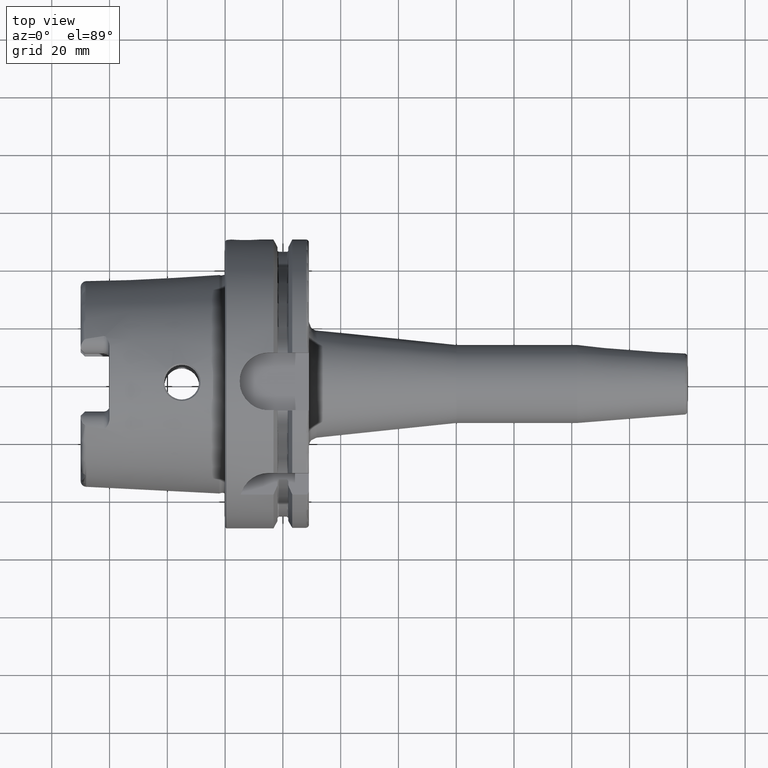
[diagram: clean part render]
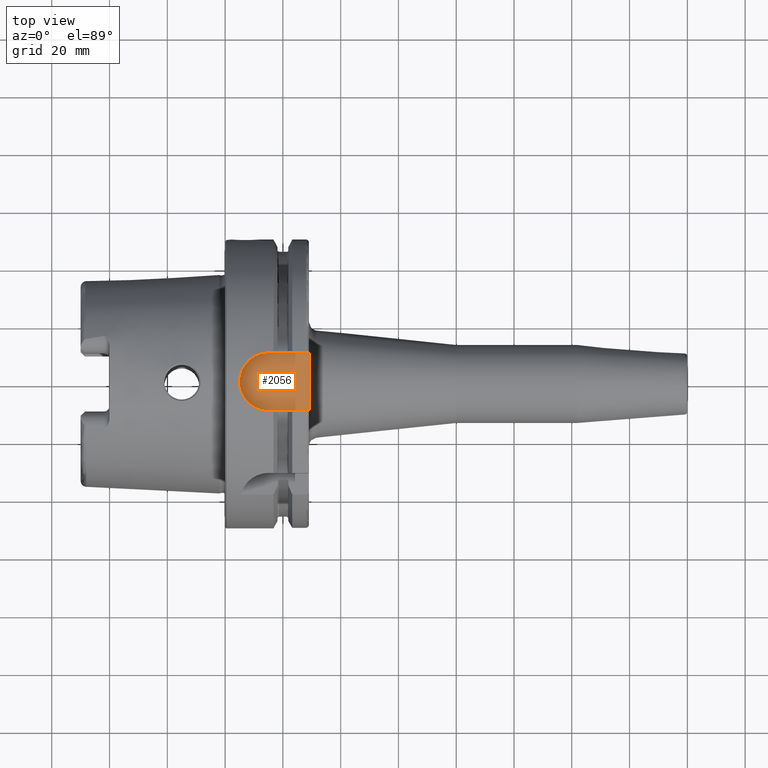
[diagram: same view with one face highlighted and labeled with its STEP entity id]
A machine part, top view. The second image highlights one B-rep face of the part: STEP entity #2056.
In plain terms, the highlighted planar face has unit normal (0, 0, 1).
Its self-contained STEP definition (entity closure, byte-faithful):
#123=PLANE('',#2289);
#281=FACE_OUTER_BOUND('',#410,.T.);
#410=EDGE_LOOP('',(#1751,#1752,#1753,#1754));
#472=LINE('',#3076,#580);
#546=LINE('',#4328,#654);
#549=LINE('',#4335,#657);
#580=VECTOR('',#2452,10.);
#654=VECTOR('',#2792,10.);
#657=VECTOR('',#2801,10.);
#758=CIRCLE('',#2287,10.);
#830=VERTEX_POINT('',#3073);
#831=VERTEX_POINT('',#3075);
#980=VERTEX_POINT('',#4327);
#981=VERTEX_POINT('',#4331);
#1042=EDGE_CURVE('',#830,#831,#472,.T.);
#1253=EDGE_CURVE('',#980,#831,#546,.T.);
#1255=EDGE_CURVE('',#981,#980,#758,.T.);
#1257=EDGE_CURVE('',#830,#981,#549,.T.);
#1751=ORIENTED_EDGE('',*,*,#1257,.T.);
#1752=ORIENTED_EDGE('',*,*,#1255,.T.);
#1753=ORIENTED_EDGE('',*,*,#1253,.T.);
#1754=ORIENTED_EDGE('',*,*,#1042,.F.);
#2056=ADVANCED_FACE('',(#281),#123,.T.);
#2287=AXIS2_PLACEMENT_3D('',#4332,#2796,#2797);
#2289=AXIS2_PLACEMENT_3D('',#4336,#2802,#2803);
#2452=DIRECTION('',(0.,-1.,0.));
#2792=DIRECTION('',(1.,7.93016446160826E-17,0.));
#2796=DIRECTION('center_axis',(0.,0.,1.));
#2797=DIRECTION('ref_axis',(0.,1.,0.));
#2801=DIRECTION('',(-1.,0.,0.));
#2802=DIRECTION('center_axis',(0.,0.,1.));
#2803=DIRECTION('ref_axis',(1.,0.,0.));
#3073=CARTESIAN_POINT('',(29.,10.,44.));
#3075=CARTESIAN_POINT('',(29.,-10.,44.));
#3076=CARTESIAN_POINT('',(29.,0.,44.));
#4327=CARTESIAN_POINT('',(15.,-10.,44.));
#4328=CARTESIAN_POINT('',(15.,-10.,44.));
#4331=CARTESIAN_POINT('',(15.,10.,44.));
#4332=CARTESIAN_POINT('Origin',(15.,0.,44.));
#4335=CARTESIAN_POINT('',(29.,10.,44.));
#4336=CARTESIAN_POINT('Origin',(17.,0.,44.));